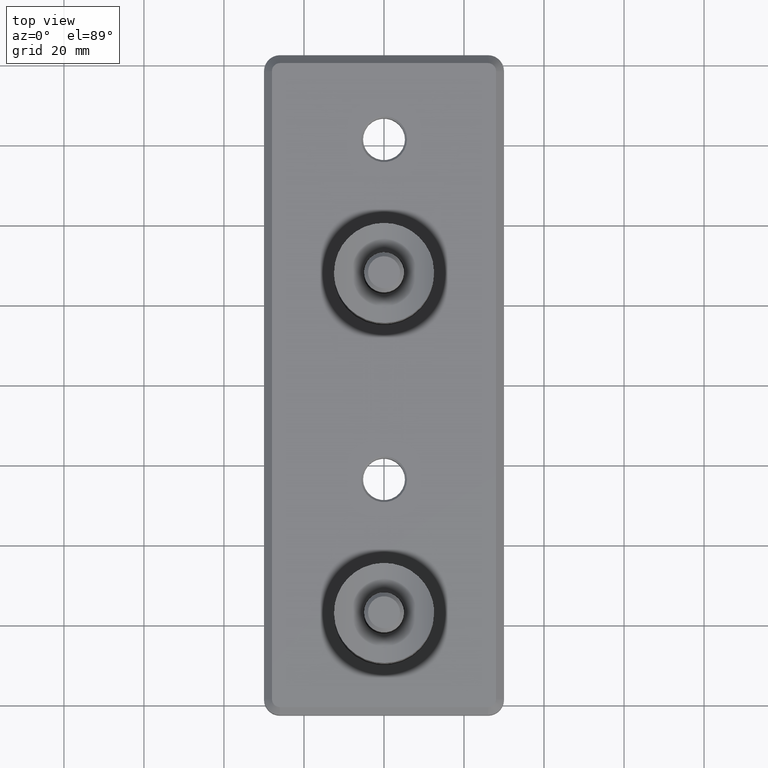
[diagram: clean part render]
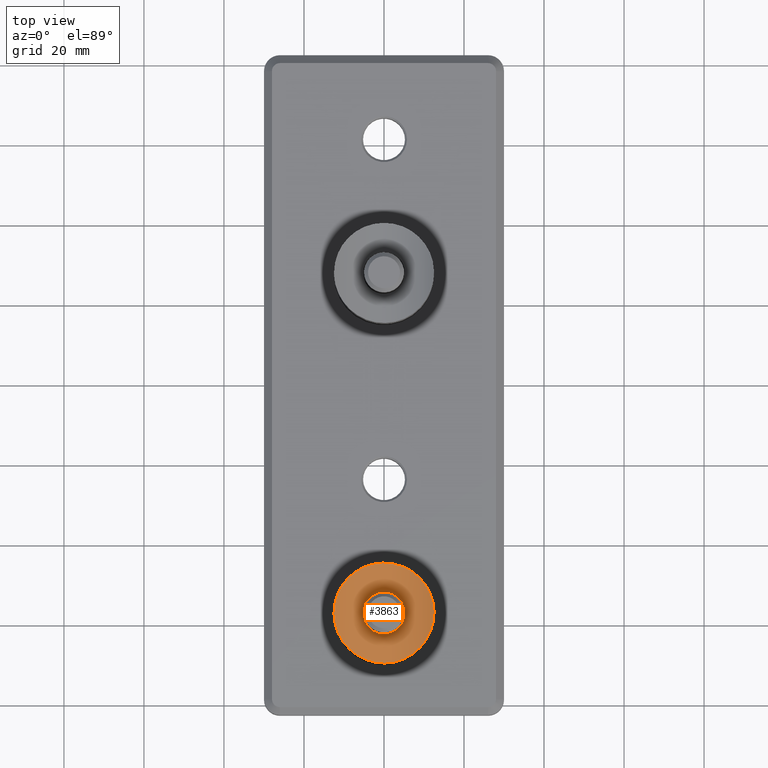
[diagram: same view with one face highlighted and labeled with its STEP entity id]
A machine part, top view. The second image highlights one B-rep face of the part: STEP entity #3863.
In plain terms, the highlighted cylindrical surface (partial cylindrical patch) has radius 21.2 mm, axis along (-0, 1, 0).
Its self-contained STEP definition (entity closure, byte-faithful):
#43 = CARTESIAN_POINT ( 'NONE',  ( 4.458780791836764124, -30.18215953044532895, -2.776847726254877635 ) ) ;
#115 = CARTESIAN_POINT ( 'NONE',  ( -2.334407108262783748, -30.53050259490624896, 4.714885092475082473 ) ) ;
#179 = CARTESIAN_POINT ( 'NONE',  ( -5.080314899970521658, -30.04148319679836021, -1.367601684218233249 ) ) ;
#248 = CARTESIAN_POINT ( 'NONE',  ( 3.955642348878950720, -30.28428046108580673, -3.468963648993509619 ) ) ;
#322 = CARTESIAN_POINT ( 'NONE',  ( -8.131516293641283255E-17, -30.66034323558474739, 5.249999999999993783 ) ) ;
#740 = CARTESIAN_POINT ( 'NONE',  ( 8.269659684127949717, -32.18686579228749167, -9.382022416828240452 ) ) ;
#807 = CARTESIAN_POINT ( 'NONE',  ( 11.21002534183693555, -30.73575645111013799, -5.591050753373576043 ) ) ;
#878 = CARTESIAN_POINT ( 'NONE',  ( -12.05665895762297346, -30.25858835878696951, -3.325599062000990980 ) ) ;
#946 = CARTESIAN_POINT ( 'NONE',  ( 0.8860142871117567820, -34.07525389651548409, -12.49732296905759377 ) ) ;
#1019 = CARTESIAN_POINT ( 'NONE',  ( 7.653665026426097917, -32.44658459250861426, -9.890956858889875747 ) ) ;
#1251 = CARTESIAN_POINT ( 'NONE',  ( 5.215797190718341803, -30.00854462263300704, -0.6900691594132644102 ) ) ;
#1304 = CARTESIAN_POINT ( 'NONE',  ( -12.41045875454616976, -30.05310759681733757, -1.707735325147986760 ) ) ;
#1349 = FACE_BOUND ( 'NONE', #11713, .T. ) ;
#1370 = CARTESIAN_POINT ( 'NONE',  ( -2.898264919438362508, -33.83829864369953100, 12.16641120991130087 ) ) ;
#1639 = CARTESIAN_POINT ( 'NONE',  ( -3.473745389335787692, -30.37001526546040964, 3.951163175822925311 ) ) ;
#1711 = CARTESIAN_POINT ( 'NONE',  ( -2.633662054082094528, -30.49410541137392272, -4.554543143928251325 ) ) ;
#1750 = CARTESIAN_POINT ( 'NONE',  ( 5.249785339095340397, -30.00005315894137325, 0.3471636571491003020 ) ) ;
#1780 = CARTESIAN_POINT ( 'NONE',  ( -4.980733700981583745, -30.06545816067403720, 1.694806566580060458 ) ) ;
#1814 = EDGE_LOOP ( 'NONE', ( #9013 ) ) ;
#1848 = CARTESIAN_POINT ( 'NONE',  ( -5.206815332823648390, -30.01065953281406351, -0.6937832773909636819 ) ) ;
#1912 = CARTESIAN_POINT ( 'NONE',  ( -0.6834160169284493325, -30.65180077405253556, -5.216934335561392189 ) ) ;
#2332 = CARTESIAN_POINT ( 'NONE',  ( -2.864745459774443059, -33.84389493896309631, -12.17438402735407088 ) ) ;
#2395 = CARTESIAN_POINT ( 'NONE',  ( -1.639093187310743049, -34.00394095270910810, -12.39911709150978325 ) ) ;
#2460 = CARTESIAN_POINT ( 'NONE',  ( 9.099289853513171877, -31.81123235145866346, 8.579684125939676775 ) ) ;
#2528 = CARTESIAN_POINT ( 'NONE',  ( -4.448026940979963761, -33.51259568297189873, -11.68891677482751312 ) ) ;
#2817 = CARTESIAN_POINT ( 'NONE',  ( -9.904348073823665999, -31.42288580060561998, 7.669188264874224892 ) ) ;
#2877 = CARTESIAN_POINT ( 'NONE',  ( -7.305735025602163368, -32.58632110779850422, 10.15069297172133211 ) ) ;
#2980 = CARTESIAN_POINT ( 'NONE',  ( 5.216108837989342106, -30.00846920363984793, 0.6887101682028775596 ) ) ;
#3217 = CARTESIAN_POINT ( 'NONE',  ( -4.552058762670115222, -30.16278915724814524, -2.637747160829190030 ) ) ;
#3284 = CARTESIAN_POINT ( 'NONE',  ( -3.467067559406464383, -30.37114435440428295, -3.957160628393921353 ) ) ;
#3350 = CARTESIAN_POINT ( 'NONE',  ( -5.216423732593292506, -30.00838941156766637, 0.6852731372967163503 ) ) ;
#3415 = CARTESIAN_POINT ( 'NONE',  ( -0.3482998213833093382, -30.66034323558475450, 5.249999999999992895 ) ) ;
#3481 = CARTESIAN_POINT ( 'NONE',  ( -1.368229485200941564, -30.61759557379318863, 5.080304761922125323 ) ) ;
#3649 = CARTESIAN_POINT ( 'NONE',  ( 15.00000000000000711, -51.20000000000052154, -1.458499278259056425E-15 ) ) ;
#3712 = CARTESIAN_POINT ( 'NONE',  ( 4.095605162789610176, -33.60895770266269977, 11.83790129368927246 ) ) ;
#3844 = CARTESIAN_POINT ( 'NONE',  ( 6.332330704725867676, -32.95420088827196281, -10.80722643487080781 ) ) ;
#3863 = ADVANCED_FACE ( 'NONE', ( #15168, #1349 ), #5033, .F. ) ;
#3874 = CARTESIAN_POINT ( 'NONE',  ( 0.6904966335989233261, -30.65148641930318973, 5.215685302954978120 ) ) ;
#3908 = CARTESIAN_POINT ( 'NONE',  ( -3.268895922307726742, -33.77228731781828941, -12.07213895231154943 ) ) ;
#3972 = CARTESIAN_POINT ( 'NONE',  ( -9.375404808503668974, -31.68501290080187616, -8.305943582281884119 ) ) ;
#4040 = CARTESIAN_POINT ( 'NONE',  ( 12.49722262022036290, -30.00163760050955375, 0.8811473890249003071 ) ) ;
#4112 = CARTESIAN_POINT ( 'NONE',  ( -8.242993244431771060, -32.20306751640406873, -9.430799355707637943 ) ) ;
#4188 = CARTESIAN_POINT ( 'NONE',  ( -0.4238836094079244110, -34.07720817156295112, 12.50000000000000711 ) ) ;
#4390 = CARTESIAN_POINT ( 'NONE',  ( -6.308790992748084747, -32.96234789396000764, 10.82083566512647366 ) ) ;
#4619 = CARTESIAN_POINT ( 'NONE',  ( 5.250212634685988533, -29.99994734283550102, -0.3406405759875450467 ) ) ;
#4880 = CARTESIAN_POINT ( 'NONE',  ( -2.326580550932541680, -30.53139003024827858, -4.718759541381232658 ) ) ;
#4944 = CARTESIAN_POINT ( 'NONE',  ( -3.955322713342623420, -30.28431366706067962, 3.469008461394501808 ) ) ;
#5033 = CYLINDRICAL_SURFACE ( 'NONE', #13807, 21.19999999999999574 ) ;
#5233 = CARTESIAN_POINT ( 'NONE',  ( 1.675843343643794725, -34.01409499314947027, 12.41472012078710563 ) ) ;
#5434 = CARTESIAN_POINT ( 'NONE',  ( 7.330211040147356805, -32.57670310710363282, -10.13307184169972608 ) ) ;
#5501 = CARTESIAN_POINT ( 'NONE',  ( 12.39903987740902913, -30.05939714936138074, -1.640003249381550177 ) ) ;
#5566 = CARTESIAN_POINT ( 'NONE',  ( 8.563940322642492831, -32.05662793716614090, -9.114120901477777537 ) ) ;
#5629 = CARTESIAN_POINT ( 'NONE',  ( 7.639919466523481972, -32.46037398122826545, 9.926357879968650266 ) ) ;
#5683 = CARTESIAN_POINT ( 'NONE',  ( 4.716776900634079617, -30.12610173621893139, 2.330517577523392170 ) ) ;
#5697 = CARTESIAN_POINT ( 'NONE',  ( 11.68640455965288005, -30.46971537827393561, -4.454949791072950305 ) ) ;
#5910 = CARTESIAN_POINT ( 'NONE',  ( -8.546432821536400937, -32.06447009748780630, 9.130588656030962369 ) ) ;
#6047 = CARTESIAN_POINT ( 'NONE',  ( -8.250334600383412820, -32.19529840873376969, 9.399126279219046864 ) ) ;
#6090 = B_SPLINE_CURVE_WITH_KNOTS ( 'NONE', 3,
 ( #13350, #8655, #3874, #7057, #18101, #19671, #10243, #15204, #20438, #16423, #8766, #13950, #14223, #8062, #5683, #10333, #18812, #14262, #7876, #2980, #1750, #4619, #1251, #17136, #11613, #6588, #19040, #8048, #43, #17504, #248, #14416, #11321, #12753, #15990, #19111, #8122, #9656, #12686, #12950, #18978, #6389, #1912, #17635, #16121, #4880, #1711, #15859, #3284, #6529, #9789, #3217, #17374, #6453, #179, #9592, #1848, #12819, #11253, #12883, #3350, #7905, #1780, #11116, #17437, #9521, #4944, #1639, #7984, #19162, #115, #17564, #3481, #9724, #3415, #322 ),
 .UNSPECIFIED., .T., .F.,
 ( 4, 2, 2, 2, 2, 2, 2, 2, 2, 2, 2, 2, 2, 2, 2, 2, 2, 2, 2, 2, 2, 2, 2, 2, 2, 2, 2, 2, 2, 2, 2, 2, 2, 2, 2, 2, 2, 4 ),
 ( 0.000000000000000000, 0.001029740522787315083, 0.001544610784180972408, 0.002059481045574630166, 0.003089221568361944815, 0.004118962091149260332, 0.005148702613936577584, 0.006178443136723893968, 0.006693313398117552160, 0.007208183659511210352, 0.008237924182298527603, 0.009267664705085845722, 0.01029740522787316211, 0.01081227548926681943, 0.01132714575066047676, 0.01235688627344779141, 0.01338662679623510605, 0.01441636731902242070, 0.01544610784180973535, 0.01596097810320339094, 0.01647584836459704827, 0.01750558888738436292, 0.01853532941017167757, 0.01956506993295899569, 0.02059481045574631033, 0.02162455097853362498, 0.02265429150132093963, 0.02368403202410825428, 0.02419890228550191161, 0.02471377254689556546, 0.02574351306968288358, 0.02677325359247019823, 0.02780299411525751288, 0.02883273463804482753, 0.02986247516083214218, 0.03089221568361946030, 0.03192195620640677495, 0.03295169672919408960 ),
 .UNSPECIFIED. ) ;
#6340 = CARTESIAN_POINT ( 'NONE',  ( 0.000000000000000000, -30.66034323558474384, 5.249999999999992895 ) ) ;
#6389 = CARTESIAN_POINT ( 'NONE',  ( -0.3411489790172725911, -30.66038052063494135, -5.250145870895686073 ) ) ;
#6453 = CARTESIAN_POINT ( 'NONE',  ( -4.979774736355142117, -30.06569316857452634, -1.698219351374629982 ) ) ;
#6529 = CARTESIAN_POINT ( 'NONE',  ( -3.951560675636962117, -30.28504119495290681, -3.473448708007522256 ) ) ;
#6588 = CARTESIAN_POINT ( 'NONE',  ( 4.783440266021712794, -30.11079269814512926, -2.170473825316482586 ) ) ;
#7024 = CARTESIAN_POINT ( 'NONE',  ( 3.342676321175135801, -33.75823474089920495, -12.05185200682198854 ) ) ;
#7057 = CARTESIAN_POINT ( 'NONE',  ( 1.195079687843049854, -30.62629113032735617, 5.115046357055121895 ) ) ;
#7092 = CARTESIAN_POINT ( 'NONE',  ( 12.41059106112182597, -30.05303130453836857, 1.707298504454077159 ) ) ;
#7157 = CARTESIAN_POINT ( 'NONE',  ( -10.79649406620359997, -30.96128752440375465, -6.350638802791109150 ) ) ;
#7227 = CARTESIAN_POINT ( 'NONE',  ( 10.14643006982020523, -31.29767131770432087, -7.311902330935399874 ) ) ;
#7295 = CARTESIAN_POINT ( 'NONE',  ( 10.12445695628427167, -31.30886202792436279, 7.342150250603312500 ) ) ;
#7436 = CARTESIAN_POINT ( 'NONE',  ( -12.50203634204621039, -29.99879932898629775, 0.8176763673977880398 ) ) ;
#7860 = CARTESIAN_POINT ( 'NONE',  ( 0.000000000000000000, -34.07720817156294402, 12.50000000000000533 ) ) ;
#7876 = CARTESIAN_POINT ( 'NONE',  ( 5.114540403873012231, -30.03316402804460239, 1.197447173588310765 ) ) ;
#7905 = CARTESIAN_POINT ( 'NONE',  ( -5.082523775439349301, -30.04095156436137515, 1.359642564336970727 ) ) ;
#7984 = CARTESIAN_POINT ( 'NONE',  ( -3.207697608114612020, -30.41330752533807313, 4.170343399685105368 ) ) ;
#8048 = CARTESIAN_POINT ( 'NONE',  ( 4.546805487392170164, -30.16325396656278457, -2.630312936885044639 ) ) ;
#8062 = CARTESIAN_POINT ( 'NONE',  ( 4.554559769941254110, -30.16226576101781731, 2.633919728567324814 ) ) ;
#8122 = CARTESIAN_POINT ( 'NONE',  ( 1.370065462107592280, -30.61746723543765114, -5.079785849215164184 ) ) ;
#8623 = CARTESIAN_POINT ( 'NONE',  ( 12.50129113565382610, -29.99923871983471102, -0.3800900245422370594 ) ) ;
#8655 = CARTESIAN_POINT ( 'NONE',  ( 0.3482998213833091716, -30.66034323558474384, 5.249999999999994671 ) ) ;
#8688 = CARTESIAN_POINT ( 'NONE',  ( 11.82867054258226425, -30.38900606303381124, -4.062648745507969394 ) ) ;
#8758 = CARTESIAN_POINT ( 'NONE',  ( -11.66482277760317388, -30.48188300950837260, -4.511103987323107134 ) ) ;
#8766 = CARTESIAN_POINT ( 'NONE',  ( 3.471673180478178189, -30.37036394208308820, 3.953004271253769186 ) ) ;
#8818 = CARTESIAN_POINT ( 'NONE',  ( 9.126169483825954387, -31.79859310426633812, -8.551099590638624903 ) ) ;
#8887 = CARTESIAN_POINT ( 'NONE',  ( 11.66462809805587675, -30.48198691563805340, 4.511375195985465325 ) ) ;
#8892 = DIRECTION ( 'NONE',  ( 0.000000000000000000, 0.000000000000000000, 1.000000000000000000 ) ) ;
#8902 = B_SPLINE_CURVE_WITH_KNOTS ( 'NONE', 3,
 ( #16351, #19385, #5233, #17871, #3712, #15105, #10281, #5629, #14910, #2460, #18139, #16746, #7295, #19709, #12076, #8887, #16681, #18349, #13521, #7092, #4040, #8623, #10212, #5501, #16610, #15178, #19642, #8688, #5697, #807, #19911, #7227, #10494, #18272, #8818, #5566, #740, #1019, #5434, #3844, #13321, #16477, #19844, #7024, #10415, #11872, #946, #11808, #12006, #2395, #18069, #2332, #3908, #13457, #2528, #14976, #13587, #13388, #16548, #10346, #4112, #3972, #15038, #7157, #18200, #8758, #19772, #878, #11940, #1304, #18484, #7436, #18624, #9243, #12274, #18556, #12137, #2817, #20258, #5910, #6047, #16960, #2877, #4390, #10832, #15445, #13939, #20058, #1370, #9031, #13659, #17024, #4188, #16821 ),
 .UNSPECIFIED., .T., .F.,
 ( 4, 2, 2, 2, 2, 2, 2, 2, 2, 2, 2, 2, 2, 2, 2, 2, 2, 2, 2, 2, 2, 2, 2, 2, 2, 2, 2, 2, 2, 2, 2, 2, 2, 2, 2, 2, 2, 2, 2, 2, 2, 2, 2, 2, 2, 2, 4 ),
 ( 0.000000000000000000, 0.002500575037280133948, 0.005001150074560269630, 0.007501725111840404879, 0.01000230014912054100, 0.01125258766776060688, 0.01250287518640067451, 0.01500345022368080976, 0.01625373774232087565, 0.01750402526096094327, 0.02000460029824107852, 0.02125488781688114615, 0.02250517533552121030, 0.02375546285416127792, 0.02500575037280134208, 0.02750632541008148080, 0.02875661292872154495, 0.03000690044736161258, 0.03125718796600168020, 0.03250747548464174436, 0.03500805052192187961, 0.03625833804056195070, 0.03750862555920201485, 0.04000920059648214316, 0.04125948811512221426, 0.04250977563376228535, 0.04376006315240234257, 0.04501035067104241366, 0.04626063818968247782, 0.04751092570832254891, 0.05001150074560267722, 0.05251207578288281247, 0.05501265082016295466, 0.05626293833880301881, 0.05751322585744308297, 0.06001380089472322515, 0.06251437593200337428, 0.06501495096928351647, 0.06751552600656365866, 0.07001610104384380084, 0.07126638856248387888, 0.07251667608112394303, 0.07501725111840409910, 0.07626753863704417713, 0.07751782615568424128, 0.07876811367432431932, 0.08001840119296439735 ),
 .UNSPECIFIED. ) ;
#9013 = ORIENTED_EDGE ( 'NONE', *, *, #10707, .F. ) ;
#9031 = CARTESIAN_POINT ( 'NONE',  ( -2.086642909512166355, -33.95520910321220498, 12.33156205190912402 ) ) ;
#9243 = CARTESIAN_POINT ( 'NONE',  ( -12.08932393936483152, -30.23994588846752762, 3.285050927320008807 ) ) ;
#9521 = CARTESIAN_POINT ( 'NONE',  ( -4.174427244027140382, -30.24127023243491408, 3.202372865988525774 ) ) ;
#9592 = CARTESIAN_POINT ( 'NONE',  ( -5.181318840543973181, -30.01692896710948233, -0.8635933852275480271 ) ) ;
#9656 = CARTESIAN_POINT ( 'NONE',  ( 0.8631364074926968222, -30.64290819774404184, -5.181428032226953917 ) ) ;
#9724 = CARTESIAN_POINT ( 'NONE',  ( -0.6915699433081129444, -30.65148207226974364, 5.215676313930408980 ) ) ;
#9789 = CARTESIAN_POINT ( 'NONE',  ( -4.172295704905443436, -30.24168297518222204, -3.204824115937080720 ) ) ;
#10212 = CARTESIAN_POINT ( 'NONE',  ( 12.48106748370102714, -30.01118350309415916, -0.8054532927876221216 ) ) ;
#10243 = CARTESIAN_POINT ( 'NONE',  ( 1.856184454112402182, -30.57724666922683099, 4.913923038399417464 ) ) ;
#10281 = CARTESIAN_POINT ( 'NONE',  ( 6.300445486796651728, -32.96539478901286913, 10.82614136634489199 ) ) ;
#10333 = CARTESIAN_POINT ( 'NONE',  ( 4.913523815634659897, -30.08090574356343083, 1.857143731800566577 ) ) ;
#10346 = CARTESIAN_POINT ( 'NONE',  ( -7.627862284773214263, -32.46526074808203077, -9.935483140635563259 ) ) ;
#10415 = CARTESIAN_POINT ( 'NONE',  ( 2.937046760329389272, -33.83180727272285537, -12.15715828628344397 ) ) ;
#10494 = CARTESIAN_POINT ( 'NONE',  ( 9.903714983647297743, -31.42060933863836425, -7.637216114839295855 ) ) ;
#10663 = VERTEX_POINT ( 'NONE', #7860 ) ;
#10707 = EDGE_CURVE ( 'NONE', #10663, #10663, #8902, .T. ) ;
#10832 = CARTESIAN_POINT ( 'NONE',  ( -5.604583299272207775, -33.19773298843660569, 11.20267554811144350 ) ) ;
#11116 = CARTESIAN_POINT ( 'NONE',  ( -4.717973050763848875, -30.12583524156034187, 2.328262826762201421 ) ) ;
#11253 = CARTESIAN_POINT ( 'NONE',  ( -5.249908094230179678, -30.00002275968114418, -0.1759319816130872904 ) ) ;
#11321 = CARTESIAN_POINT ( 'NONE',  ( 3.205658137181515155, -30.41358916587996930, -4.171670282120301998 ) ) ;
#11613 = CARTESIAN_POINT ( 'NONE',  ( 4.981684002612903228, -30.06523880262662018, -1.692440284925289973 ) ) ;
#11713 = EDGE_LOOP ( 'NONE', ( #19958 ) ) ;
#11808 = CARTESIAN_POINT ( 'NONE',  ( -0.3850937661070816254, -34.07812001687192094, -12.50124907634356219 ) ) ;
#11872 = CARTESIAN_POINT ( 'NONE',  ( 1.715989125616549815, -34.01029033295746018, -12.40952643742747696 ) ) ;
#11940 = CARTESIAN_POINT ( 'NONE',  ( -12.16013246386164681, -30.19870921843090983, -2.924489711231786693 ) ) ;
#12006 = CARTESIAN_POINT ( 'NONE',  ( -0.8070878136106502954, -34.06322051784221117, -12.48091905216837993 ) ) ;
#12076 = CARTESIAN_POINT ( 'NONE',  ( 11.18673559650116189, -30.74851782150145851, 5.636591700097153712 ) ) ;
#12137 = CARTESIAN_POINT ( 'NONE',  ( -10.81529640315652863, -30.95132667119734293, 6.319962272150707605 ) ) ;
#12274 = CARTESIAN_POINT ( 'NONE',  ( -11.83994799044258883, -30.38402953964717668, 4.091362508897636197 ) ) ;
#12686 = CARTESIAN_POINT ( 'NONE',  ( 0.6904329719521135056, -30.64946370979773249, -5.207280382202474023 ) ) ;
#12753 = CARTESIAN_POINT ( 'NONE',  ( 2.638331455173650308, -30.49349319320847940, -4.551734193452544375 ) ) ;
#12819 = CARTESIAN_POINT ( 'NONE',  ( -5.241129184459311752, -30.00220156119068449, -0.3504654304259517961 ) ) ;
#12883 = CARTESIAN_POINT ( 'NONE',  ( -5.250181628321566762, -29.99995502129468150, 0.3435711130264408331 ) ) ;
#12950 = CARTESIAN_POINT ( 'NONE',  ( 0.3459057713732852091, -30.65815259211499466, -5.241451694422071483 ) ) ;
#13321 = CARTESIAN_POINT ( 'NONE',  ( 5.629766700528002765, -33.18966330151086197, -11.18969624354873638 ) ) ;
#13350 = CARTESIAN_POINT ( 'NONE',  ( -8.131516293641283255E-17, -30.66034323558474739, 5.249999999999993783 ) ) ;
#13388 = CARTESIAN_POINT ( 'NONE',  ( -6.276656481027607981, -32.96615234693923213, -10.81743948219726015 ) ) ;
#13457 = CARTESIAN_POINT ( 'NONE',  ( -4.062392419382830688, -33.60617946690209834, -11.82874411193929731 ) ) ;
#13521 = CARTESIAN_POINT ( 'NONE',  ( 12.15987681657327002, -30.19885758287590960, 2.925629073069762942 ) ) ;
#13587 = CARTESIAN_POINT ( 'NONE',  ( -5.564610046012392175, -33.19884257559015595, -11.20038073315563842 ) ) ;
#13659 = CARTESIAN_POINT ( 'NONE',  ( -1.676188553741066789, -34.00034742548066902, 12.39413791456127534 ) ) ;
#13807 = AXIS2_PLACEMENT_3D ( 'NONE', #3649, #14912, #8892 ) ;
#13939 = CARTESIAN_POINT ( 'NONE',  ( -4.092729325265530349, -33.59914468516754482, 11.81828963120915610 ) ) ;
#13950 = CARTESIAN_POINT ( 'NONE',  ( 3.953814846203984601, -30.28460195283666678, 3.470750005768042712 ) ) ;
#14223 = CARTESIAN_POINT ( 'NONE',  ( 4.170668289941308338, -30.24202487841924025, 3.207346855234340932 ) ) ;
#14262 = CARTESIAN_POINT ( 'NONE',  ( 5.071933253408950293, -30.04344953212784830, 1.366613164314453677 ) ) ;
#14416 = CARTESIAN_POINT ( 'NONE',  ( 3.469210861769501886, -30.37079834843176940, -3.955425538025397092 ) ) ;
#14910 = CARTESIAN_POINT ( 'NONE',  ( 8.253902182121779063, -32.19826740542859511, 9.421004241829065151 ) ) ;
#14912 = DIRECTION ( 'NONE',  ( -1.000000000000000000, -1.800782001297308257E-31, -4.314083075427371527E-31 ) ) ;
#14976 = CARTESIAN_POINT ( 'NONE',  ( -5.199138297438138601, -33.30893052827112655, -11.37473867834507857 ) ) ;
#15038 = CARTESIAN_POINT ( 'NONE',  ( -9.895106780779487465, -31.42743474530143644, -7.679958276062280653 ) ) ;
#15105 = CARTESIAN_POINT ( 'NONE',  ( 5.593301396689160043, -33.20122759820976910, 11.20825000499159430 ) ) ;
#15168 = FACE_OUTER_BOUND ( 'NONE', #1814, .T. ) ;
#15178 = CARTESIAN_POINT ( 'NONE',  ( 12.17402486957018226, -30.19065756805757772, -2.866271616448685666 ) ) ;
#15204 = CARTESIAN_POINT ( 'NONE',  ( 2.332476841568219772, -30.53074541563181654, 4.715961535419107342 ) ) ;
#15445 = CARTESIAN_POINT ( 'NONE',  ( -4.480559060405732374, -33.50436564027570085, 11.67646838110307961 ) ) ;
#15859 = CARTESIAN_POINT ( 'NONE',  ( -3.203618083507129732, -30.41392139615658508, -4.173352398257517137 ) ) ;
#15990 = CARTESIAN_POINT ( 'NONE',  ( 2.330907184574601221, -30.53091138631831214, -4.716678052985275649 ) ) ;
#16121 = CARTESIAN_POINT ( 'NONE',  ( -1.694163682403202698, -30.59299508408569324, -4.980911371082609840 ) ) ;
#16351 = CARTESIAN_POINT ( 'NONE',  ( -8.131516293641283255E-16, -34.07720817156294402, 12.50000000000000711 ) ) ;
#16423 = CARTESIAN_POINT ( 'NONE',  ( 3.203082806422699047, -30.41400165912948239, 4.173745192493108824 ) ) ;
#16477 = CARTESIAN_POINT ( 'NONE',  ( 4.513568984186816735, -33.49592437607536510, -11.66366532468685513 ) ) ;
#16548 = CARTESIAN_POINT ( 'NONE',  ( -6.624734481196393077, -32.84295367176925851, -10.60777639856616972 ) ) ;
#16610 = CARTESIAN_POINT ( 'NONE',  ( 12.33739488078823676, -30.09557154665869305, -2.052092117735665688 ) ) ;
#16681 = CARTESIAN_POINT ( 'NONE',  ( 11.80702830373932599, -30.40130995932323899, 4.125290108934023259 ) ) ;
#16746 = CARTESIAN_POINT ( 'NONE',  ( 9.880977930886484017, -31.43200044329510945, 7.666656435487459120 ) ) ;
#16821 = CARTESIAN_POINT ( 'NONE',  ( -8.131516293641283255E-16, -34.07720817156294402, 12.50000000000000711 ) ) ;
#16960 = CARTESIAN_POINT ( 'NONE',  ( -7.629375070976070816, -32.45652045301021360, 9.909804834473719737 ) ) ;
#17024 = CARTESIAN_POINT ( 'NONE',  ( -0.8455510957059375610, -34.06134785719933689, 12.47835349945690275 ) ) ;
#17136 = CARTESIAN_POINT ( 'NONE',  ( 5.081232061290827495, -30.04126279909594999, -1.364483975277423156 ) ) ;
#17374 = CARTESIAN_POINT ( 'NONE',  ( -4.713971403334164201, -30.12673980582385980, -2.336788180125012104 ) ) ;
#17437 = CARTESIAN_POINT ( 'NONE',  ( -4.556893165891179542, -30.16175420859693901, 2.629783158960021350 ) ) ;
#17504 = CARTESIAN_POINT ( 'NONE',  ( 4.174227597799118783, -30.24129671343468573, -3.202305691155964862 ) ) ;
#17564 = CARTESIAN_POINT ( 'NONE',  ( -1.702622078311042841, -30.59229298603016645, 4.978019288913954732 ) ) ;
#17635 = CARTESIAN_POINT ( 'NONE',  ( -1.365632405878986599, -30.61781387109181196, -5.081191734796757231 ) ) ;
#17871 = CARTESIAN_POINT ( 'NONE',  ( 3.296557528382306312, -33.78121211076992836, 12.08579476294287680 ) ) ;
#18069 = CARTESIAN_POINT ( 'NONE',  ( -2.050549075641086461, -33.95957170334609287, -12.33765137630253328 ) ) ;
#18101 = CARTESIAN_POINT ( 'NONE',  ( 1.361811605131325598, -30.61590723144168180, 5.073243410274501208 ) ) ;
#18139 = CARTESIAN_POINT ( 'NONE',  ( 9.368375596618179202, -31.68317282644206401, 8.285220845044271698 ) ) ;
#18200 = CARTESIAN_POINT ( 'NONE',  ( -11.18372281719153349, -30.75018873321646851, -5.643309527002583259 ) ) ;
#18272 = CARTESIAN_POINT ( 'NONE',  ( 9.394115780166851337, -31.67078763112499828, -8.255981417790460242 ) ) ;
#18349 = CARTESIAN_POINT ( 'NONE',  ( 12.05574095154473468, -30.25911940883100471, 3.329120898588340260 ) ) ;
#18484 = CARTESIAN_POINT ( 'NONE',  ( -12.49788895021744395, -30.00124472034465484, -0.8787941327055002194 ) ) ;
#18556 = CARTESIAN_POINT ( 'NONE',  ( -11.20333342658422460, -30.73942968397226139, 5.604367558286947215 ) ) ;
#18624 = CARTESIAN_POINT ( 'NONE',  ( -12.41822876017533694, -30.04853384307565278, 1.652545722798548056 ) ) ;
#18812 = CARTESIAN_POINT ( 'NONE',  ( 4.971505262243548273, -30.06730056653667660, 1.695958105437102681 ) ) ;
#18978 = CARTESIAN_POINT ( 'NONE',  ( 0.1739307311609937234, -30.66032441025339850, -5.249926349354786304 ) ) ;
#19040 = CARTESIAN_POINT ( 'NONE',  ( 4.708966949258715395, -30.12761016722668828, -2.327577400842641975 ) ) ;
#19111 = CARTESIAN_POINT ( 'NONE',  ( 1.697314184838486062, -30.59274469369636407, -4.979890030569008808 ) ) ;
#19162 = CARTESIAN_POINT ( 'NONE',  ( -2.635462127116897424, -30.49389170523515702, 4.553616957203788118 ) ) ;
#19385 = CARTESIAN_POINT ( 'NONE',  ( 0.8477672188158403843, -34.07720817156292981, 12.50000000000000178 ) ) ;
#19642 = CARTESIAN_POINT ( 'NONE',  ( 12.07229783247376886, -30.24957287319801935, -3.268361466909701196 ) ) ;
#19671 = CARTESIAN_POINT ( 'NONE',  ( 1.692301210969957337, -30.59140403507810646, 4.972770471187422991 ) ) ;
#19678 = EDGE_CURVE ( 'NONE', #20024, #20024, #6090, .T. ) ;
#19709 = CARTESIAN_POINT ( 'NONE',  ( 10.80110207316823079, -30.95883475061160439, 6.342979572200223792 ) ) ;
#19772 = CARTESIAN_POINT ( 'NONE',  ( -11.80920847800569007, -30.40006968321036851, -4.118886920590389522 ) ) ;
#19844 = CARTESIAN_POINT ( 'NONE',  ( 4.131024785211189432, -33.59014321064879027, -11.80488271887759844 ) ) ;
#19911 = CARTESIAN_POINT ( 'NONE',  ( 10.82435123611150019, -30.94642858781981332, -6.303907974649649582 ) ) ;
#19958 = ORIENTED_EDGE ( 'NONE', *, *, #19678, .T. ) ;
#20024 = VERTEX_POINT ( 'NONE', #6340 ) ;
#20058 = CARTESIAN_POINT ( 'NONE',  ( -3.299432798071065154, -33.76652842166070201, 12.06383630310222443 ) ) ;
#20258 = CARTESIAN_POINT ( 'NONE',  ( -9.393693742237655186, -31.67618262658065831, 8.285238113159326900 ) ) ;
#20438 = CARTESIAN_POINT ( 'NONE',  ( 2.633460016791151492, -30.49412887073067324, 4.554643425848229121 ) ) ;